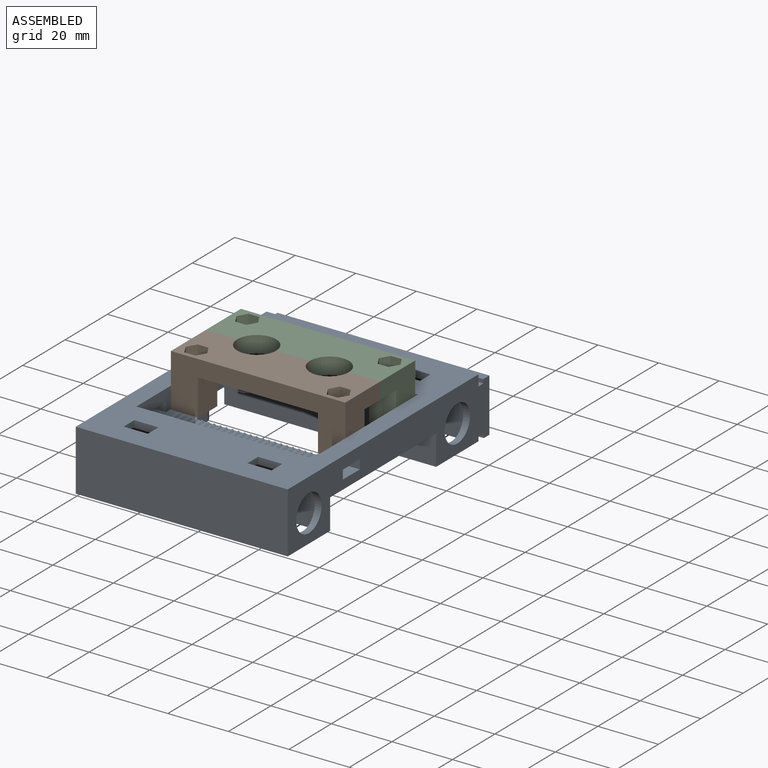
[diagram: assembled view]
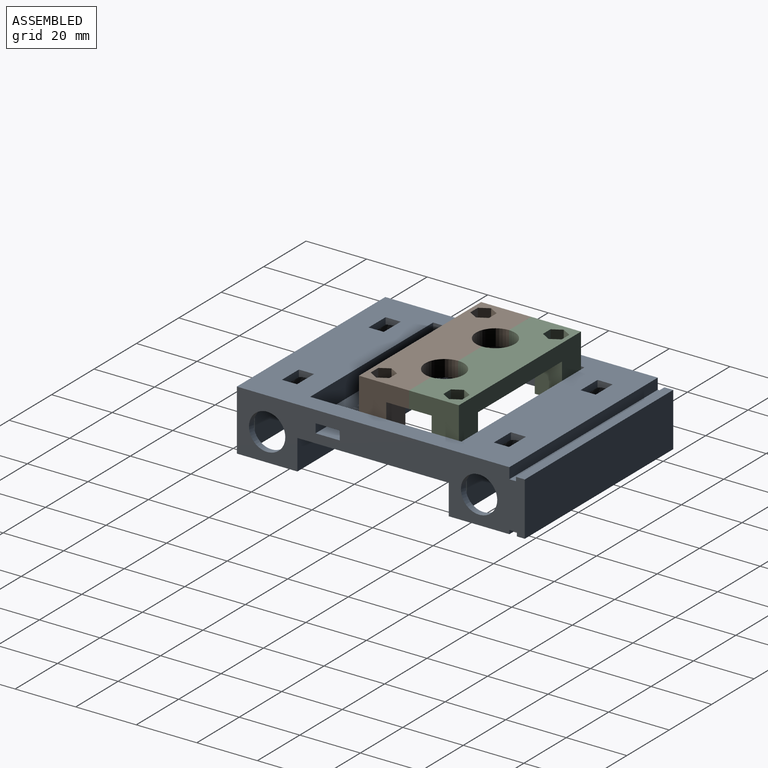
[diagram: assembled view, second angle]
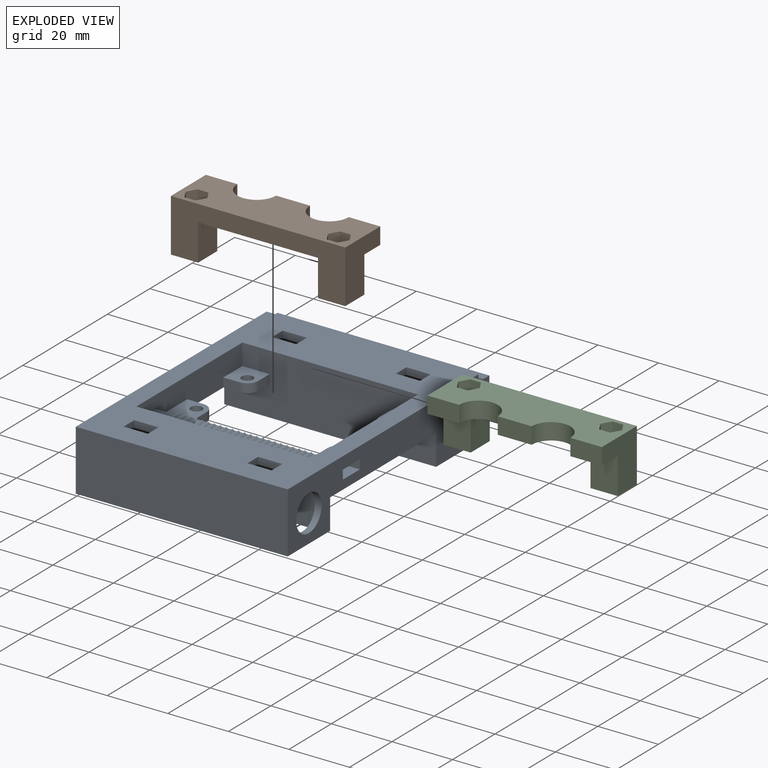
[diagram: exploded view]
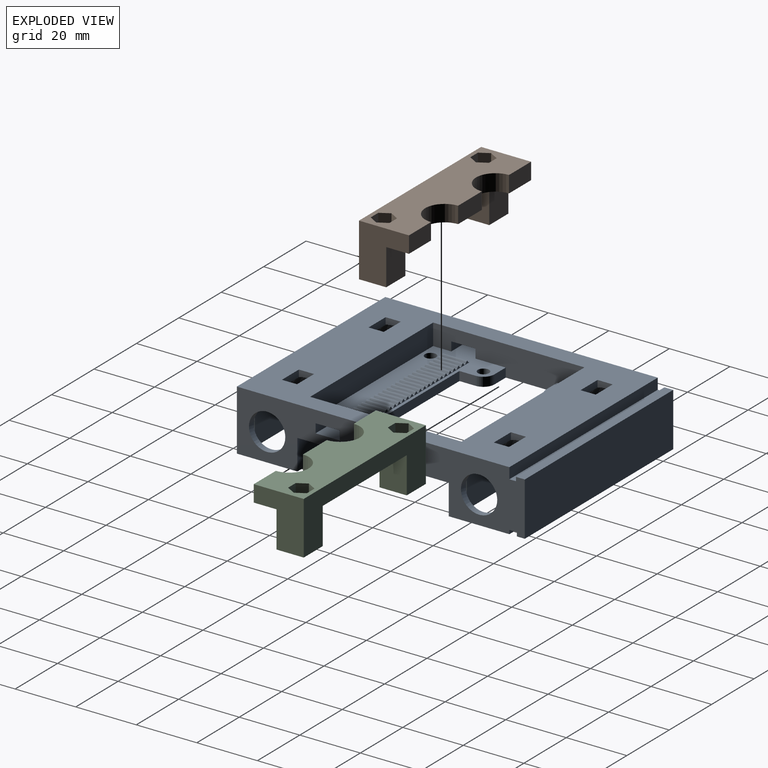
[diagram: exploded view, second angle]
ASSEMBLY  parts=3 mates=6
PART A: 251 faces, bbox 70x95.1x20 mm
  f0: plane 70x24mm, normal (0,0,1), area 663.1mm2, adj f1,f2,f3,f4,f5,f7,f173,f174
  f1: plane 50x10mm, normal (-1,0,0), area 377mm2, adj f0,f7,f8,f13,f17,f25,f27,f177
  f2: plane 50x10mm, normal (1,0,0), area 377mm2, adj f0,f7,f8,f13,f17,f19,f22,f175
  f3: plane 95.1x20mm, normal (1,0,0), area 1134mm2, adj f0,f6,f8,f11,f12,f13,f14,f15
  f4: plane 95.1x20mm, normal (-1,0,0), area 1134mm2, adj f0,f6,f8,f11,f12,f13,f14,f15
  f5: plane 40x3mm, normal (0,1,0), area 120mm2, adj f0,f17,f173,f179
  f6: plane 70x1.3mm, normal (0,1,0), area 91mm2, adj f3,f4,f12,f170
  f7: plane 58x7mm, normal (0,1,0), area 406mm2, adj f0,f1,f2,f8
  f8: plane 90x70mm, normal (0,0,1), area 3240mm2, adj f1,f2,f3,f4,f7,f13,f14,f15
  f9: cylinder r=8.1mm len=16.2mm, axis (1,0,0), area 363.9mm2, adj f99,f105,f133,f134,f162,f163,f164,f165
  f10: cylinder r=8.1mm len=16.2mm, axis (-1,0,0), area 363.9mm2, adj f58,f64,f83,f84,f150,f151,f152,f153
  f11: plane 70x20mm, normal (0,0,-1), area 549mm2, adj f3,f4,f15,f16,f89,f90,f91,f92
  f12: plane 70x20mm, normal (0,0,-1), area 549mm2, adj f3,f4,f6,f13,f28,f29,f30,f31
  f13: plane 70x20mm, normal (0,-1,0), area 1226mm2, adj f1,f2,f3,f4,f8,f12,f17,f18
  f14: plane 70x3.6mm, normal (0,1,0), area 252mm2, adj f3,f4,f8,f169
  f15: plane 70x20mm, normal (0,-1,0), area 1400mm2, adj f3,f4,f8,f11
  f16: plane 70x10mm, normal (0,1,0), area 700mm2, adj f3,f4,f11,f17
  f17: plane 70x50mm, normal (0,0,-1), area 1717.7mm2, adj f1,f2,f3,f4,f5,f13,f16,f18
  f18: plane 5.3x3mm, normal (1,0,0), area 15.9mm2, adj f13,f17,f21,f22
  f19: plane 5.3x3mm, normal (0,-1,0), area 15.9mm2, adj f2,f17,f21,f22
  f20: cylinder r=1.85mm len=3.7mm, axis (0,0,-1), area 34.9mm2, adj f17,f22
  f21: cylinder r=3.7mm len=3.7mm, axis (0,0,-1), area 17.4mm2, adj f17,f18,f19,f22
  f22: plane 9x9mm, normal (0,0,1), area 67.3mm2, adj f2,f13,f18,f19,f20,f21
  f23: plane 5.3x3mm, normal (-1,0,0), area 15.9mm2, adj f13,f17,f24,f27
  f24: cylinder r=3.7mm len=3.7mm, axis (0,0,-1), area 17.4mm2, adj f17,f23,f25,f27
  f25: plane 5.3x3mm, normal (0,-1,0), area 15.9mm2, adj f1,f17,f24,f27
  f26: cylinder r=1.85mm len=3.7mm, axis (0,0,-1), area 34.9mm2, adj f17,f27
  f27: plane 9x9mm, normal (0,0,1), area 67.3mm2, adj f1,f13,f23,f24,f25,f26
  f28: plane 10x0.55mm, normal (-1,0,-0.03), area 2mm2, adj f12,f43,f45,f74
  f29: plane 10x0.55mm, normal (1,0,-0.03), area 2mm2, adj f12,f43,f46,f76
  f30: plane 10x0.55mm, normal (-1,0,-0.03), area 2mm2, adj f12,f42,f44,f70
  f31: plane 10x0.55mm, normal (1,0,-0.03), area 2mm2, adj f12,f42,f45,f72
  f32: plane 10x0.55mm, normal (1,0,-0.03), area 2mm2, adj f12,f37,f39,f72
  f33: plane 10x0.55mm, normal (-1,0,-0.03), area 2mm2, adj f12,f37,f38,f70
  f34: plane 10x0.55mm, normal (1,0,-0.03), area 2mm2, adj f12,f36,f40,f76
  f35: plane 10x0.55mm, normal (-1,0,-0.03), area 2mm2, adj f12,f36,f39,f74
  f36: plane 10x1.1mm, normal (0,-1,-0.03), area 7.5mm2, adj f12,f34,f35,f75
  f37: plane 10x1.1mm, normal (0,-1,-0.03), area 7.5mm2, adj f12,f32,f33,f71
  f38: plane 10x3.9mm, normal (0,-1,-0.03), area 35.5mm2, adj f12,f33,f41,f69
  f39: plane 16.6x10mm, normal (0,-1,-0.03), area 162.6mm2, adj f12,f32,f35,f73
  f40: plane 10x3.9mm, normal (0,-1,-0.03), area 35.5mm2, adj f12,f34,f47,f77
  f41: plane 16.9x10mm, normal (1,0,-0.03), area 98.8mm2, adj f12,f38,f44,f68,f182
  f42: plane 10x1.1mm, normal (0,1,-0.03), area 7.5mm2, adj f12,f30,f31,f71
  f43: plane 10x1.1mm, normal (0,1,-0.03), area 7.5mm2, adj f12,f28,f29,f75
  f44: plane 10x3.9mm, normal (0,1,-0.03), area 35.5mm2, adj f12,f30,f41,f69
  f45: plane 16.6x10mm, normal (0,1,-0.03), area 162.6mm2, adj f12,f28,f31,f73
  f46: plane 10x3.9mm, normal (0,1,-0.03), area 35.5mm2, adj f12,f29,f47,f77
  f47: plane 16.9x10mm, normal (-1,0,-0.03), area 98.8mm2, adj f12,f40,f46,f78,f183
  f48: plane 10x0.55mm, normal (-1,0,-0.03), area 2mm2, adj f12,f57,f60,f86
  f49: plane 10x0.55mm, normal (1,0,-0.03), area 2mm2, adj f12,f58,f60,f84
  f50: plane 10x0.55mm, normal (-1,0,-0.03), area 2mm2, adj f12,f58,f61,f83
  f51: plane 10x0.55mm, normal (1,0,-0.03), area 2mm2, adj f12,f59,f61,f81
  f52: plane 10x0.55mm, normal (1,0,-0.03), area 2mm2, adj f12,f65,f66,f81
  f53: plane 10x0.55mm, normal (-1,0,-0.03), area 2mm2, adj f12,f64,f66,f83
  f54: plane 10x0.55mm, normal (1,0,-0.03), area 2mm2, adj f12,f64,f67,f84
  f55: plane 10x0.55mm, normal (-1,0,-0.03), area 2mm2, adj f12,f63,f67,f86
  f56: plane 16.9x10mm, normal (1,0,-0.03), area 98.8mm2, adj f12,f57,f63,f88,f181
  f57: plane 10x3.9mm, normal (0,1,-0.03), area 35.5mm2, adj f12,f48,f56,f87
  f58: plane 16.6x10mm, normal (0,1,-0.03), area 162.6mm2, adj f10,f12,f49,f50
  f59: plane 10x3.9mm, normal (0,1,-0.03), area 35.5mm2, adj f12,f51,f62,f80
  f60: plane 10x1.1mm, normal (0,1,-0.03), area 7.5mm2, adj f12,f48,f49,f85
  f61: plane 10x1.1mm, normal (0,1,-0.03), area 7.5mm2, adj f12,f50,f51,f82
  f62: plane 16.9x10mm, normal (-1,0,-0.03), area 98.8mm2, adj f12,f59,f65,f79,f182
  f63: plane 10x3.9mm, normal (0,-1,-0.03), area 35.5mm2, adj f12,f55,f56,f87
  f64: plane 16.6x10mm, normal (0,-1,-0.03), area 162.6mm2, adj f10,f12,f53,f54
  f65: plane 10x3.9mm, normal (0,-1,-0.03), area 35.5mm2, adj f12,f52,f62,f80
  f66: plane 10x1.1mm, normal (0,-1,-0.03), area 7.5mm2, adj f12,f52,f53,f82
  f67: plane 10x1.1mm, normal (0,-1,-0.03), area 7.5mm2, adj f12,f54,f55,f85
  f68: plane 16.2x8.1mm, normal (1,0,0), area 56.7mm2, adj f41,f69,f182
  f69: cylinder r=8.1mm len=16.2mm, axis (1,0,0), area 81.4mm2, adj f38,f44,f68,f70
  f70: plane 16.2x8.1mm, normal (-1,0,0), area 5mm2, adj f30,f33,f69,f71
  f71: cylinder r=7.9mm len=15.8mm, axis (1,0,0), area 27.3mm2, adj f37,f42,f70,f72
  f72: plane 16.2x8.1mm, normal (1,0,0), area 5mm2, adj f31,f32,f71,f73
  f73: cylinder r=8.1mm len=16.2mm, axis (1,0,0), area 363.9mm2, adj f39,f45,f72,f74,f154,f155,f156,f157
  f74: plane 16.2x8.1mm, normal (-1,0,0), area 5mm2, adj f28,f35,f73,f75
  f75: cylinder r=7.9mm len=15.8mm, axis (1,0,0), area 27.3mm2, adj f36,f43,f74,f76
  f76: plane 16.2x8.1mm, normal (1,0,0), area 5mm2, adj f29,f34,f75,f77
  f77: cylinder r=8.1mm len=16.2mm, axis (1,0,0), area 81.4mm2, adj f40,f46,f76,f78
  f78: plane 16.2x8.1mm, normal (-1,0,0), area 56.7mm2, adj f47,f77,f183
  f79: plane 16.2x8.1mm, normal (-1,0,0), area 56.7mm2, adj f62,f80,f182
  f80: cylinder r=8.1mm len=16.2mm, axis (-1,0,0), area 81.4mm2, adj f59,f65,f79,f81
  f81: plane 16.2x8.1mm, normal (1,0,0), area 5mm2, adj f51,f52,f80,f82
  f82: cylinder r=7.9mm len=15.8mm, axis (-1,0,0), area 27.3mm2, adj f61,f66,f81,f83
  f83: plane 16.2x8.1mm, normal (-1,0,0), area 5mm2, adj f10,f50,f53,f82
  f84: plane 16.2x8.1mm, normal (1,0,0), area 5mm2, adj f10,f49,f54,f85
  f85: cylinder r=7.9mm len=15.8mm, axis (-1,0,0), area 27.3mm2, adj f60,f67,f84,f86
  f86: plane 16.2x8.1mm, normal (-1,0,0), area 5mm2, adj f48,f55,f85,f87
  f87: cylinder r=8.1mm len=16.2mm, axis (-1,0,0), area 81.4mm2, adj f57,f63,f86,f88
  f88: plane 16.2x8.1mm, normal (1,0,0), area 56.7mm2, adj f56,f87,f181
  f89: plane 10x0.55mm, normal (1,0,-0.03), area 2mm2, adj f11,f100,f101,f136
  f90: plane 10x0.55mm, normal (-1,0,-0.03), area 2mm2, adj f11,f99,f101,f134
  f91: plane 10x0.55mm, normal (1,0,-0.03), area 2mm2, adj f11,f99,f102,f133
  f92: plane 10x0.55mm, normal (-1,0,-0.03), area 2mm2, adj f11,f98,f102,f131
  f93: plane 10x0.55mm, normal (-1,0,-0.03), area 2mm2, adj f11,f104,f107,f131
  f94: plane 10x0.55mm, normal (1,0,-0.03), area 2mm2, adj f11,f105,f107,f133
  f95: plane 10x0.55mm, normal (-1,0,-0.03), area 2mm2, adj f11,f105,f108,f134
  f96: plane 10x0.55mm, normal (1,0,-0.03), area 2mm2, adj f11,f106,f108,f136
  f97: plane 16.9x10mm, normal (-1,0,-0.03), area 98.8mm2, adj f11,f100,f106,f138,f186
  f98: plane 10x3.9mm, normal (0,-1,-0.03), area 35.5mm2, adj f11,f92,f103,f130
  f99: plane 16.6x10mm, normal (0,-1,-0.03), area 162.6mm2, adj f9,f11,f90,f91
  f100: plane 10x3.9mm, normal (0,-1,-0.03), area 35.5mm2, adj f11,f89,f97,f137
  f101: plane 10x1.1mm, normal (0,-1,-0.03), area 7.5mm2, adj f11,f89,f90,f135
  f102: plane 10x1.1mm, normal (0,-1,-0.03), area 7.5mm2, adj f11,f91,f92,f132
  f103: plane 16.9x10mm, normal (1,0,-0.03), area 98.8mm2, adj f11,f98,f104,f129,f185
  f104: plane 10x3.9mm, normal (0,1,-0.03), area 35.5mm2, adj f11,f93,f103,f130
  f105: plane 16.6x10mm, normal (0,1,-0.03), area 162.6mm2, adj f9,f11,f94,f95
  f106: plane 10x3.9mm, normal (0,1,-0.03), area 35.5mm2, adj f11,f96,f97,f137
  f107: plane 10x1.1mm, normal (0,1,-0.03), area 7.5mm2, adj f11,f93,f94,f132
  f108: plane 10x1.1mm, normal (0,1,-0.03), area 7.5mm2, adj f11,f95,f96,f135
  f109: plane 10x0.55mm, normal (1,0,-0.03), area 2mm2, adj f11,f125,f127,f145
  f110: plane 10x0.55mm, normal (-1,0,-0.03), area 2mm2, adj f11,f125,f126,f147
  f111: plane 10x0.55mm, normal (1,0,-0.03), area 2mm2, adj f11,f124,f128,f141
  f112: plane 10x0.55mm, normal (-1,0,-0.03), area 2mm2, adj f11,f124,f127,f143
  f113: plane 10x0.55mm, normal (-1,0,-0.03), area 2mm2, adj f11,f119,f121,f143
  f114: plane 10x0.55mm, normal (1,0,-0.03), area 2mm2, adj f11,f119,f122,f141
  f115: plane 10x0.55mm, normal (-1,0,-0.03), area 2mm2, adj f11,f118,f120,f147
  f116: plane 10x0.55mm, normal (1,0,-0.03), area 2mm2, adj f11,f118,f121,f145
  f117: plane 16.9x10mm, normal (1,0,-0.03), area 98.8mm2, adj f11,f120,f126,f149,f184
  f118: plane 10x1.1mm, normal (0,1,-0.03), area 7.5mm2, adj f11,f115,f116,f146
  f119: plane 10x1.1mm, normal (0,1,-0.03), area 7.5mm2, adj f11,f113,f114,f142
  f120: plane 10x3.9mm, normal (0,1,-0.03), area 35.5mm2, adj f11,f115,f117,f148
  f121: plane 16.6x10mm, normal (0,1,-0.03), area 162.6mm2, adj f11,f113,f116,f144
  f122: plane 10x3.9mm, normal (0,1,-0.03), area 35.5mm2, adj f11,f114,f123,f140
  f123: plane 16.9x10mm, normal (-1,0,-0.03), area 98.8mm2, adj f11,f122,f128,f139,f185
  f124: plane 10x1.1mm, normal (0,-1,-0.03), area 7.5mm2, adj f11,f111,f112,f142
  f125: plane 10x1.1mm, normal (0,-1,-0.03), area 7.5mm2, adj f11,f109,f110,f146
  f126: plane 10x3.9mm, normal (0,-1,-0.03), area 35.5mm2, adj f11,f110,f117,f148
  f127: plane 16.6x10mm, normal (0,-1,-0.03), area 162.6mm2, adj f11,f109,f112,f144
  f128: plane 10x3.9mm, normal (0,-1,-0.03), area 35.5mm2, adj f11,f111,f123,f140
  f129: plane 16.2x8.1mm, normal (1,0,0), area 56.7mm2, adj f103,f130,f185
  f130: cylinder r=8.1mm len=16.2mm, axis (1,0,0), area 81.4mm2, adj f98,f104,f129,f131
  f131: plane 16.2x8.1mm, normal (-1,0,0), area 5mm2, adj f92,f93,f130,f132
  f132: cylinder r=7.9mm len=15.8mm, axis (1,0,0), area 27.3mm2, adj f102,f107,f131,f133
  f133: plane 16.2x8.1mm, normal (1,0,0), area 5mm2, adj f9,f91,f94,f132
  f134: plane 16.2x8.1mm, normal (-1,0,0), area 5mm2, adj f9,f90,f95,f135
  f135: cylinder r=7.9mm len=15.8mm, axis (1,0,0), area 27.3mm2, adj f101,f108,f134,f136
  f136: plane 16.2x8.1mm, normal (1,0,0), area 5mm2, adj f89,f96,f135,f137
  f137: cylinder r=8.1mm len=16.2mm, axis (1,0,0), area 81.4mm2, adj f100,f106,f136,f138
  f138: plane 16.2x8.1mm, normal (-1,0,0), area 56.7mm2, adj f97,f137,f186
  f139: plane 16.2x8.1mm, normal (-1,0,0), area 56.7mm2, adj f123,f140,f185
  f140: cylinder r=8.1mm len=16.2mm, axis (-1,0,0), area 81.4mm2, adj f122,f128,f139,f141
  f141: plane 16.2x8.1mm, normal (1,0,0), area 5mm2, adj f111,f114,f140,f142
  f142: cylinder r=7.9mm len=15.8mm, axis (-1,0,0), area 27.3mm2, adj f119,f124,f141,f143
  f143: plane 16.2x8.1mm, normal (-1,0,0), area 5mm2, adj f112,f113,f142,f144
  f144: cylinder r=8.1mm len=16.2mm, axis (-1,0,0), area 363.9mm2, adj f121,f127,f143,f145,f158,f159,f160,f161
  f145: plane 16.2x8.1mm, normal (1,0,0), area 5mm2, adj f109,f116,f144,f146
  f146: cylinder r=7.9mm len=15.8mm, axis (-1,0,0), area 27.3mm2, adj f118,f125,f145,f147
  f147: plane 16.2x8.1mm, normal (-1,0,0), area 5mm2, adj f110,f115,f146,f148
  f148: cylinder r=8.1mm len=16.2mm, axis (-1,0,0), area 81.4mm2, adj f120,f126,f147,f149
  f149: plane 16.2x8.1mm, normal (1,0,0), area 56.7mm2, adj f117,f148,f184
  f150: plane 5x2.3mm, normal (-1,0,0), area 10.2mm2, adj f8,f10,f151,f153
  f151: plane 8x2.3mm, normal (0,-1,0), area 18.4mm2, adj f8,f10,f150,f152
  f152: plane 5x2.3mm, normal (1,0,0), area 10.2mm2, adj f8,f10,f151,f153
  f153: plane 8x2.3mm, normal (0,1,0), area 18.4mm2, adj f8,f10,f150,f152
  f154: plane 5x2.3mm, normal (1,0,0), area 10.2mm2, adj f8,f73,f155,f157
  f155: plane 8x2.3mm, normal (0,1,0), area 18.4mm2, adj f8,f73,f154,f156
  f156: plane 5x2.3mm, normal (-1,0,0), area 10.2mm2, adj f8,f73,f155,f157
  f157: plane 8x2.3mm, normal (0,-1,0), area 18.4mm2, adj f8,f73,f154,f156
  f158: plane 5x2.3mm, normal (-1,0,0), area 10.2mm2, adj f8,f144,f159,f161
  f159: plane 8x2.3mm, normal (0,-1,0), area 18.4mm2, adj f8,f144,f158,f160
  f160: plane 5x2.3mm, normal (1,0,0), area 10.2mm2, adj f8,f144,f159,f161
  f161: plane 8x2.3mm, normal (0,1,0), area 18.4mm2, adj f8,f144,f158,f160
  f162: plane 5x2.3mm, normal (1,0,0), area 10.2mm2, adj f8,f9,f163,f165
  f163: plane 8x2.3mm, normal (0,1,0), area 18.4mm2, adj f8,f9,f162,f164
  f164: plane 5x2.3mm, normal (-1,0,0), area 10.2mm2, adj f8,f9,f163,f165
  f165: plane 8x2.3mm, normal (0,-1,0), area 18.4mm2, adj f8,f9,f162,f164
  f166: plane 70x17.7mm, normal (0,1,0), area 1239mm2, adj f3,f4,f167,f172
  f167: plane 70x2.9mm, normal (0,0,1), area 203mm2, adj f3,f4,f166,f168
  f168: plane 70x1.3mm, normal (0,-1,0), area 91mm2, adj f3,f4,f167,f169
  f169: plane 70x2.2mm, normal (0,0,1), area 154mm2, adj f3,f4,f14,f168
  f170: plane 70x2.5mm, normal (0,0,-1), area 175mm2, adj f3,f4,f6,f171
  f171: plane 70x1.3mm, normal (0,-1,0), area 91mm2, adj f3,f4,f170,f172
  f172: plane 70x2.6mm, normal (0,0,-1), area 182mm2, adj f3,f4,f166,f171
  f173: plane 5.3x3mm, normal (1,0,0), area 15.9mm2, adj f0,f5,f17,f174
  f174: cylinder r=3.7mm len=3.7mm, axis (0,0,-1), area 17.4mm2, adj f0,f17,f173,f175
  f175: plane 5.3x3mm, normal (0,1,0), area 15.9mm2, adj f0,f2,f17,f174
  f176: cylinder r=1.85mm len=3.7mm, axis (0,0,-1), area 34.9mm2, adj f0,f17
  f177: plane 5.3x3mm, normal (0,1,0), area 15.9mm2, adj f0,f1,f17,f178
  f178: cylinder r=3.7mm len=3.7mm, axis (0,0,-1), area 17.4mm2, adj f0,f17,f177,f179
  f179: plane 5.3x3mm, normal (-1,0,0), area 15.9mm2, adj f0,f5,f17,f178
  f180: cylinder r=1.85mm len=3.7mm, axis (0,0,-1), area 34.9mm2, adj f0,f17
  f181: cylinder r=6mm len=12mm, axis (-1,0,0), area 83.6mm2, adj f4,f56,f88
  f182: cylinder r=6mm len=16.4mm, axis (-1,0,0), area 612.1mm2, adj f41,f62,f68,f79
  f183: cylinder r=6mm len=12mm, axis (-1,0,0), area 83.6mm2, adj f3,f47,f78
  f184: cylinder r=6mm len=12mm, axis (-1,0,0), area 83.6mm2, adj f4,f117,f149
  f185: cylinder r=6mm len=16.4mm, axis (-1,0,0), area 612.1mm2, adj f103,f123,f129,f139
  f186: cylinder r=6mm len=12mm, axis (-1,0,0), area 83.6mm2, adj f3,f97,f138
  f187: plane 6x3mm, normal (0,1,0), area 18mm2, adj f0,f2,f4,f188
  f188: plane 8x6mm, normal (0,0,-1), area 48mm2, adj f2,f4,f187,f189
  f189: plane 6x3mm, normal (0,-1,0), area 18mm2, adj f0,f2,f4,f188
  f190: plane 6x3mm, normal (0,-1,0), area 18mm2, adj f0,f1,f3,f191
  f191: plane 8x6mm, normal (0,0,-1), area 48mm2, adj f1,f3,f190,f192
  f192: plane 6x3mm, normal (0,1,0), area 18mm2, adj f0,f1,f3,f191
  f193: extruded ~8x1mm, area 10.7mm2, adj f194,f196,f197,f199
  f194: extruded ~8x1mm, area 10.7mm2, adj f193,f195,f196,f197
  f195: plane 8x0.1mm, normal (-1,0,0), area 0.8mm2, adj f0,f194,f196,f197
  f196: plane 52x0.85mm, normal (0,-1,0), area 23.4mm2, adj f0,f193,f194,f195,f198,f199,f200,f201
  f197: plane 52x0.85mm, normal (0,1,0), area 23.4mm2, adj f0,f193,f194,f195,f198,f199,f200,f201
  f198: extruded ~8x1mm, area 10.7mm2, adj f196,f197,f199,f201
  f199: extruded ~8x1mm, area 10.7mm2, adj f193,f196,f197,f198
  f200: extruded ~8x1mm, area 10.7mm2, adj f196,f197,f201,f203
  f201: extruded ~8x1mm, area 10.7mm2, adj f196,f197,f198,f200
  f202: extruded ~8x1mm, area 10.7mm2, adj f196,f197,f203,f205
  f203: extruded ~8x1mm, area 10.7mm2, adj f196,f197,f200,f202
  f204: extruded ~8x1mm, area 10.7mm2, adj f196,f197,f205,f207
  f205: extruded ~8x1mm, area 10.7mm2, adj f196,f197,f202,f204
  f206: extruded ~8x1mm, area 10.7mm2, adj f196,f197,f207,f209
  f207: extruded ~8x1mm, area 10.7mm2, adj f196,f197,f204,f206
  f208: extruded ~8x1mm, area 10.7mm2, adj f196,f197,f209,f211
  f209: extruded ~8x1mm, area 10.7mm2, adj f196,f197,f206,f208
  f210: extruded ~8x1mm, area 10.7mm2, adj f196,f197,f211,f213
  f211: extruded ~8x1mm, area 10.7mm2, adj f196,f197,f208,f210
  f212: extruded ~8x1mm, area 10.7mm2, adj f196,f197,f213,f215
  f213: extruded ~8x1mm, area 10.7mm2, adj f196,f197,f210,f212
  f214: extruded ~8x1mm, area 10.7mm2, adj f196,f197,f215,f217
  f215: extruded ~8x1mm, area 10.7mm2, adj f196,f197,f212,f214
  f216: extruded ~8x1mm, area 10.7mm2, adj f196,f197,f217,f219
  f217: extruded ~8x1mm, area 10.7mm2, adj f196,f197,f214,f216
  f218: extruded ~8x1mm, area 10.7mm2, adj f196,f197,f219,f221
  f219: extruded ~8x1mm, area 10.7mm2, adj f196,f197,f216,f218
  f220: extruded ~8x1mm, area 10.7mm2, adj f196,f197,f221,f223
  f221: extruded ~8x1mm, area 10.7mm2, adj f196,f197,f218,f220
  f222: extruded ~8x1mm, area 10.7mm2, adj f196,f197,f223,f225
  f223: extruded ~8x1mm, area 10.7mm2, adj f196,f197,f220,f222
  f224: extruded ~8x1mm, area 10.7mm2, adj f196,f197,f225,f227
  f225: extruded ~8x1mm, area 10.7mm2, adj f196,f197,f222,f224
  f226: extruded ~8x1mm, area 10.7mm2, adj f196,f197,f227,f229
  f227: extruded ~8x1mm, area 10.7mm2, adj f196,f197,f224,f226
  f228: extruded ~8x1mm, area 10.7mm2, adj f196,f197,f229,f231
  f229: extruded ~8x1mm, area 10.7mm2, adj f196,f197,f226,f228
  f230: extruded ~8x1mm, area 10.7mm2, adj f196,f197,f231,f233
  f231: extruded ~8x1mm, area 10.7mm2, adj f196,f197,f228,f230
  f232: extruded ~8x1mm, area 10.7mm2, adj f196,f197,f233,f235
  f233: extruded ~8x1mm, area 10.7mm2, adj f196,f197,f230,f232
  f234: extruded ~8x1mm, area 10.7mm2, adj f196,f197,f235,f237
  f235: extruded ~8x1mm, area 10.7mm2, adj f196,f197,f232,f234
  f236: extruded ~8x1mm, area 10.7mm2, adj f196,f197,f237,f239
  f237: extruded ~8x1mm, area 10.7mm2, adj f196,f197,f234,f236
  f238: extruded ~8x1mm, area 10.7mm2, adj f196,f197,f239,f241
  f239: extruded ~8x1mm, area 10.7mm2, adj f196,f197,f236,f238
  f240: extruded ~8x1mm, area 10.7mm2, adj f196,f197,f241,f243
  f241: extruded ~8x1mm, area 10.7mm2, adj f196,f197,f238,f240
  f242: extruded ~8x1mm, area 10.7mm2, adj f196,f197,f243,f245
  f243: extruded ~8x1mm, area 10.7mm2, adj f196,f197,f240,f242
  f244: extruded ~8x1mm, area 10.7mm2, adj f196,f197,f245,f248
  f245: extruded ~8x1mm, area 10.7mm2, adj f196,f197,f242,f244
  f246: plane 8x0.1mm, normal (1,0,0), area 0.8mm2, adj f0,f196,f197,f247
  f247: extruded ~8x1mm, area 10.7mm2, adj f196,f197,f246,f248
  f248: extruded ~8x1mm, area 10.7mm2, adj f196,f197,f244,f247
  f249: cylinder r=1.85mm len=3.7mm, axis (0,0,1), area 34.9mm2, adj f0,f17
  f250: cylinder r=1.85mm len=3.7mm, axis (0,0,1), area 34.9mm2, adj f0,f17
PART B: 32 faces, bbox 57.6x16.5x17.5 mm
  f0: plane 57.6x16.5mm, normal (0,0,1), area 755.1mm2, adj f3,f4,f5,f6,f7,f12,f13,f14
  f1: cylinder r=1.85mm len=13.5mm, axis (0,0,-1), area 156.9mm2, adj f21,f28
  f2: cylinder r=1.85mm len=13.5mm, axis (0,0,-1), area 156.9mm2, adj f11,f18
  f3: plane 17.5x16.5mm, normal (1,0,0), area 198.8mm2, adj f0,f6,f8,f20,f21,f29
  f4: plane 17.5x16.5mm, normal (-1,0,0), area 198.8mm2, adj f0,f6,f8,f9,f11,f31
  f5: cylinder r=6.4mm len=12.8mm, axis (0,0,-1), area 110.6mm2, adj f0,f8,f30,f31
  f6: plane 57.6x17.5mm, normal (0,-1,0), area 532.8mm2, adj f0,f3,f4,f8,f10,f11,f19,f21
  f7: cylinder r=6.4mm len=12.8mm, axis (0,0,-1), area 110.6mm2, adj f0,f8,f29,f30
  f8: plane 57.6x16.5mm, normal (0,0,-1), area 659.7mm2, adj f3,f4,f5,f6,f7,f9,f10,f19
  f9: plane 12x9mm, normal (0,1,0), area 108mm2, adj f4,f8,f10,f11
  f10: plane 12x9mm, normal (1,0,0), area 108mm2, adj f6,f8,f9,f11
  f11: plane 9x9mm, normal (0,0,-1), area 70.2mm2, adj f2,f4,f6,f9,f10
  f12: plane 4x3.1mm, normal (-0.87,-0.5,0), area 14.3mm2, adj f0,f13,f17,f18
  f13: plane 4x3.58mm, normal (0,-1,0), area 14.3mm2, adj f0,f12,f14,f18
  f14: plane 4x3.1mm, normal (0.87,-0.5,0), area 14.3mm2, adj f0,f13,f15,f18
  f15: plane 4x3.1mm, normal (0.87,0.5,0), area 14.3mm2, adj f0,f14,f16,f18
  f16: plane 4x3.58mm, normal (0,1,0), area 14.3mm2, adj f0,f15,f17,f18
  f17: plane 4x3.1mm, normal (-0.87,0.5,0), area 14.3mm2, adj f0,f12,f16,f18
  f18: plane 7.16x6.2mm, normal (0,0,1), area 22.5mm2, adj f2,f12,f13,f14,f15,f16,f17
  f19: plane 12x9mm, normal (-1,0,0), area 108mm2, adj f6,f8,f20,f21
  f20: plane 12x9mm, normal (0,1,0), area 108mm2, adj f3,f8,f19,f21
  f21: plane 9x9mm, normal (0,0,-1), area 70.2mm2, adj f1,f3,f6,f19,f20
  f22: plane 4x3.1mm, normal (0.87,-0.5,0), area 14.3mm2, adj f0,f23,f27,f28
  f23: plane 4x3.1mm, normal (0.87,0.5,0), area 14.3mm2, adj f0,f22,f24,f28
  f24: plane 4x3.58mm, normal (0,1,0), area 14.3mm2, adj f0,f23,f25,f28
  f25: plane 4x3.1mm, normal (-0.87,0.5,0), area 14.3mm2, adj f0,f24,f26,f28
  f26: plane 4x3.1mm, normal (-0.87,-0.5,0), area 14.3mm2, adj f0,f25,f27,f28
  f27: plane 4x3.58mm, normal (0,-1,0), area 14.3mm2, adj f0,f22,f26,f28
  f28: plane 7.16x6.2mm, normal (0,0,1), area 22.5mm2, adj f1,f22,f23,f24,f25,f26,f27
  f29: plane 10.4x5.5mm, normal (0,1,0), area 57.2mm2, adj f0,f3,f7,f8
  f30: plane 11.2x5.5mm, normal (0,1,0), area 61.6mm2, adj f0,f5,f7,f8
  f31: plane 10.4x5.5mm, normal (0,1,0), area 57.2mm2, adj f0,f4,f5,f8
PART C: 32 faces, bbox 57.6x16.5x17.5 mm
  f0: plane 10.4x5.5mm, normal (0,-1,0), area 57.2mm2, adj f24,f26,f27,f29
  f1: plane 7.16x6.2mm, normal (0,0,1), area 22.5mm2, adj f4,f5,f6,f7,f8,f9,f10
  f2: plane 7.16x6.2mm, normal (0,0,1), area 22.5mm2, adj f3,f11,f12,f13,f14,f15,f16
  f3: cylinder r=1.85mm len=13.5mm, axis (0,0,-1), area 156.9mm2, adj f2,f17
  f4: cylinder r=1.85mm len=13.5mm, axis (0,0,-1), area 156.9mm2, adj f1,f18
  f5: plane 4x3.1mm, normal (-0.87,-0.5,0), area 14.3mm2, adj f1,f6,f10,f29
  f6: plane 4x3.58mm, normal (0,-1,0), area 14.3mm2, adj f1,f5,f7,f29
  f7: plane 4x3.1mm, normal (0.87,-0.5,0), area 14.3mm2, adj f1,f6,f8,f29
  f8: plane 4x3.1mm, normal (0.87,0.5,0), area 14.3mm2, adj f1,f7,f9,f29
  f9: plane 4x3.58mm, normal (0,1,0), area 14.3mm2, adj f1,f8,f10,f29
  f10: plane 4x3.1mm, normal (-0.87,0.5,0), area 14.3mm2, adj f1,f5,f9,f29
  f11: plane 4x3.1mm, normal (-0.87,0.5,0), area 14.3mm2, adj f2,f12,f16,f29
  f12: plane 4x3.1mm, normal (-0.87,-0.5,0), area 14.3mm2, adj f2,f11,f13,f29
  f13: plane 4x3.58mm, normal (0,-1,0), area 14.3mm2, adj f2,f12,f14,f29
  f14: plane 4x3.1mm, normal (0.87,-0.5,0), area 14.3mm2, adj f2,f13,f15,f29
  f15: plane 4x3.1mm, normal (0.87,0.5,0), area 14.3mm2, adj f2,f14,f16,f29
  f16: plane 4x3.58mm, normal (0,1,0), area 14.3mm2, adj f2,f11,f15,f29
  f17: plane 9x9mm, normal (0,0,-1), area 70.2mm2, adj f3,f19,f20,f21,f28
  f18: plane 9x9mm, normal (0,0,-1), area 70.2mm2, adj f4,f21,f22,f23,f27
  f19: plane 12x9mm, normal (0,-1,0), area 108mm2, adj f17,f20,f24,f28
  f20: plane 12x9mm, normal (-1,0,0), area 108mm2, adj f17,f19,f21,f24
  f21: plane 57.6x17.5mm, normal (0,1,0), area 532.8mm2, adj f17,f18,f20,f22,f24,f27,f28,f29
  f22: plane 12x9mm, normal (1,0,0), area 108mm2, adj f18,f21,f23,f24
  f23: plane 12x9mm, normal (0,-1,0), area 108mm2, adj f18,f22,f24,f27
  f24: plane 57.6x16.5mm, normal (0,0,-1), area 659.7mm2, adj f0,f19,f20,f21,f22,f23,f25,f26
  f25: cylinder r=6.4mm len=12.8mm, axis (0,0,-1), area 110.6mm2, adj f24,f29,f30,f31
  f26: cylinder r=6.4mm len=12.8mm, axis (0,0,-1), area 110.6mm2, adj f0,f24,f29,f30
  f27: plane 17.5x16.5mm, normal (-1,0,0), area 198.8mm2, adj f0,f18,f21,f23,f24,f29
  f28: plane 17.5x16.5mm, normal (1,0,0), area 198.8mm2, adj f17,f19,f21,f24,f29,f31
  f29: plane 57.6x16.5mm, normal (0,0,1), area 755.1mm2, adj f0,f5,f6,f7,f8,f9,f10,f11
  f30: plane 11.2x5.5mm, normal (0,-1,0), area 61.6mm2, adj f24,f25,f26,f29
  f31: plane 10.4x5.5mm, normal (0,-1,0), area 57.2mm2, adj f24,f25,f28,f29
PLACE A t=(-10.34,-16.54,4.85)mm fixed
PLACE B t=(-10.34,-9.04,19.85)mm
PLACE C t=(-10.34,-9.04,19.85)mm
MATE cylindrical C.f4 <-> A.f20  axis (0,0,-1) through (-33.84,2.96,21.35)mm
MATE cylindrical A.f180 <-> B.f1  axis (0,0,1) through (13.16,-21.04,7.85)mm
MATE planar A.f0 <-> B.f21  axis (0,0,1) through (15.66,-27.54,7.85)mm
MATE planar B.f3 <-> C.f28  axis (1,0,0) through (18.46,-19.33,17.84)mm
MATE planar C.f29 <-> B.f0  axis (0,0,1) through (-10.34,-0.18,25.35)mm
MATE planar C.f30 <-> B.f30  axis (0,-1,0) through (-10.34,-9.04,22.6)mm
